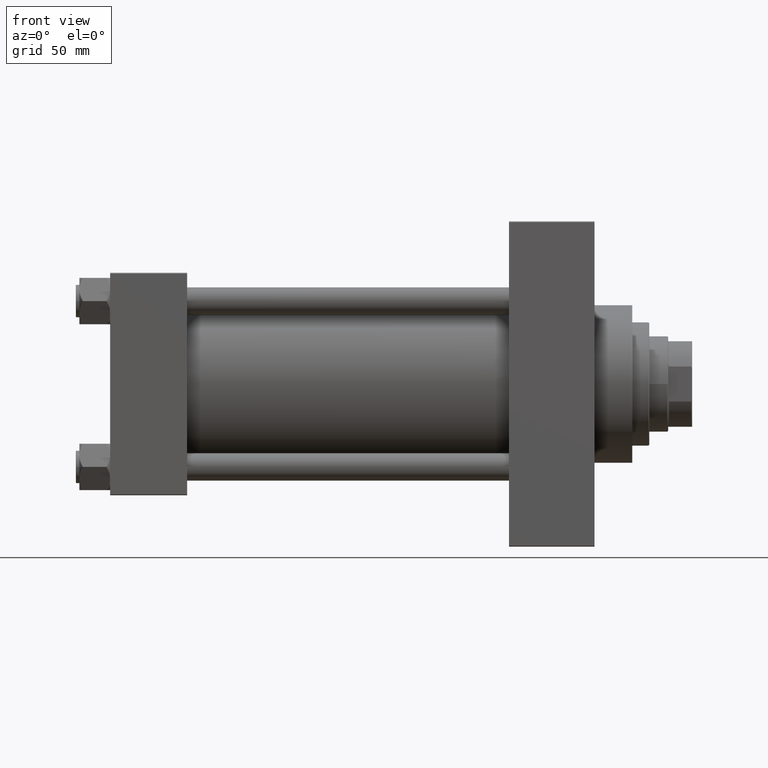
[diagram: clean part render]
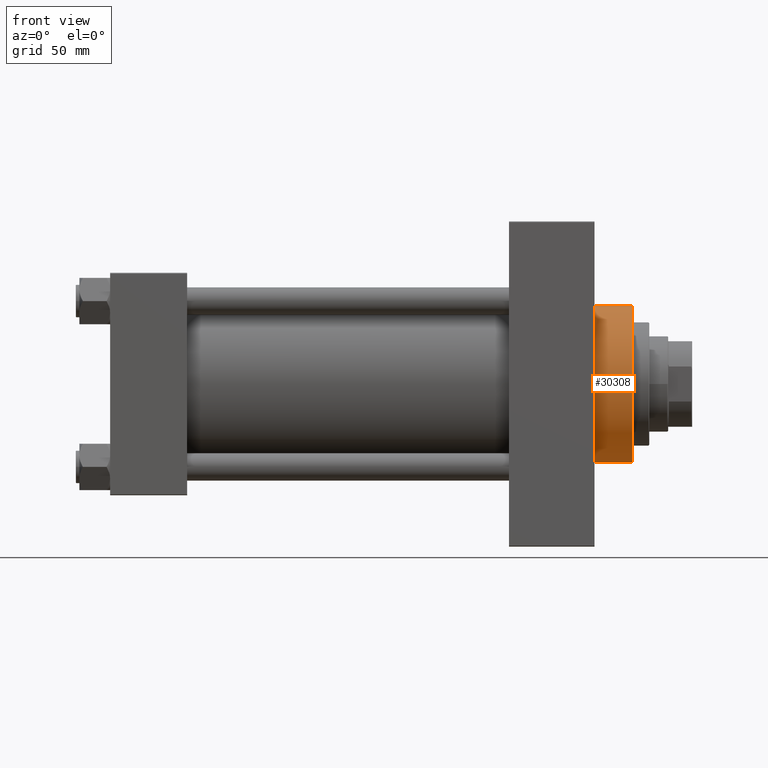
[diagram: same view with one face highlighted and labeled with its STEP entity id]
A machine part, front view. The second image highlights one B-rep face of the part: STEP entity #30308.
In plain terms, the highlighted cylindrical surface (partial cylindrical patch) has radius 46 mm, axis along (-1, -0, -0).
Its self-contained STEP definition (entity closure, byte-faithful):
#3588 = VECTOR ( 'NONE', #16817, 1000.000000000000000 ) ;
#3650 = ORIENTED_EDGE ( 'NONE', *, *, #42487, .F. ) ;
#6975 = CARTESIAN_POINT ( 'NONE',  ( 305.0000000000000000, 5.633375276077824704E-15, -46.00000000000000000 ) ) ;
#7877 = CARTESIAN_POINT ( 'NONE',  ( 283.0000000000000000, 5.633375276077824704E-15, -46.00000000000000000 ) ) ;
#7955 = CARTESIAN_POINT ( 'NONE',  ( 305.0000000000000000, 5.633375276077824704E-15, -46.00000000000000000 ) ) ;
#9803 = VECTOR ( 'NONE', #40062, 1000.000000000000000 ) ;
#10838 = VERTEX_POINT ( 'NONE', #7877 ) ;
#13245 = VERTEX_POINT ( 'NONE', #32729 ) ;
#15015 = EDGE_CURVE ( 'NONE', #39233, #13245, #16344, .T. ) ;
#15706 = CARTESIAN_POINT ( 'NONE',  ( 305.0000000000000000, 0.000000000000000000, 0.000000000000000000 ) ) ;
#16015 = ORIENTED_EDGE ( 'NONE', *, *, #15015, .T. ) ;
#16344 = LINE ( 'NONE', #17048, #3588 ) ;
#16457 = DIRECTION ( 'NONE',  ( 1.000000000000000000, 0.000000000000000000, 0.000000000000000000 ) ) ;
#16817 = DIRECTION ( 'NONE',  ( -1.000000000000000000, -0.000000000000000000, -0.000000000000000000 ) ) ;
#17048 = CARTESIAN_POINT ( 'NONE',  ( 305.0000000000000000, 0.000000000000000000, 46.00000000000000000 ) ) ;
#17343 = AXIS2_PLACEMENT_3D ( 'NONE', #45934, #16457, #42076 ) ;
#19566 = FACE_OUTER_BOUND ( 'NONE', #25136, .T. ) ;
#21076 = ORIENTED_EDGE ( 'NONE', *, *, #31236, .F. ) ;
#22448 = DIRECTION ( 'NONE',  ( -1.000000000000000000, -0.000000000000000000, -0.000000000000000000 ) ) ;
#24436 = VERTEX_POINT ( 'NONE', #7955 ) ;
#25136 = EDGE_LOOP ( 'NONE', ( #3650, #21076, #16015, #38245 ) ) ;
#25307 = LINE ( 'NONE', #6975, #9803 ) ;
#28071 = CIRCLE ( 'NONE', #31929, 46.00000000000000000 ) ;
#28262 = CARTESIAN_POINT ( 'NONE',  ( 305.0000000000000000, 0.000000000000000000, 46.00000000000000000 ) ) ;
#28911 = CIRCLE ( 'NONE', #17343, 46.00000000000000000 ) ;
#30308 = ADVANCED_FACE ( 'NONE', ( #19566 ), #44696, .T. ) ;
#31236 = EDGE_CURVE ( 'NONE', #39233, #24436, #28071, .T. ) ;
#31929 = AXIS2_PLACEMENT_3D ( 'NONE', #42780, #38201, #45686 ) ;
#32729 = CARTESIAN_POINT ( 'NONE',  ( 283.0000000000000000, 0.000000000000000000, 46.00000000000000000 ) ) ;
#33450 = EDGE_CURVE ( 'NONE', #13245, #10838, #28911, .T. ) ;
#37184 = DIRECTION ( 'NONE',  ( 0.000000000000000000, 0.000000000000000000, 1.000000000000000000 ) ) ;
#38201 = DIRECTION ( 'NONE',  ( 1.000000000000000000, 0.000000000000000000, 0.000000000000000000 ) ) ;
#38245 = ORIENTED_EDGE ( 'NONE', *, *, #33450, .T. ) ;
#39233 = VERTEX_POINT ( 'NONE', #28262 ) ;
#40062 = DIRECTION ( 'NONE',  ( -1.000000000000000000, -0.000000000000000000, -0.000000000000000000 ) ) ;
#42076 = DIRECTION ( 'NONE',  ( 0.000000000000000000, 0.000000000000000000, -1.000000000000000000 ) ) ;
#42487 = EDGE_CURVE ( 'NONE', #24436, #10838, #25307, .T. ) ;
#42780 = CARTESIAN_POINT ( 'NONE',  ( 305.0000000000000000, 0.000000000000000000, 0.000000000000000000 ) ) ;
#43479 = AXIS2_PLACEMENT_3D ( 'NONE', #15706, #22448, #37184 ) ;
#44696 = CYLINDRICAL_SURFACE ( 'NONE', #43479, 46.00000000000000000 ) ;
#45686 = DIRECTION ( 'NONE',  ( 0.000000000000000000, 0.000000000000000000, -1.000000000000000000 ) ) ;
#45934 = CARTESIAN_POINT ( 'NONE',  ( 283.0000000000000000, 0.000000000000000000, 0.000000000000000000 ) ) ;